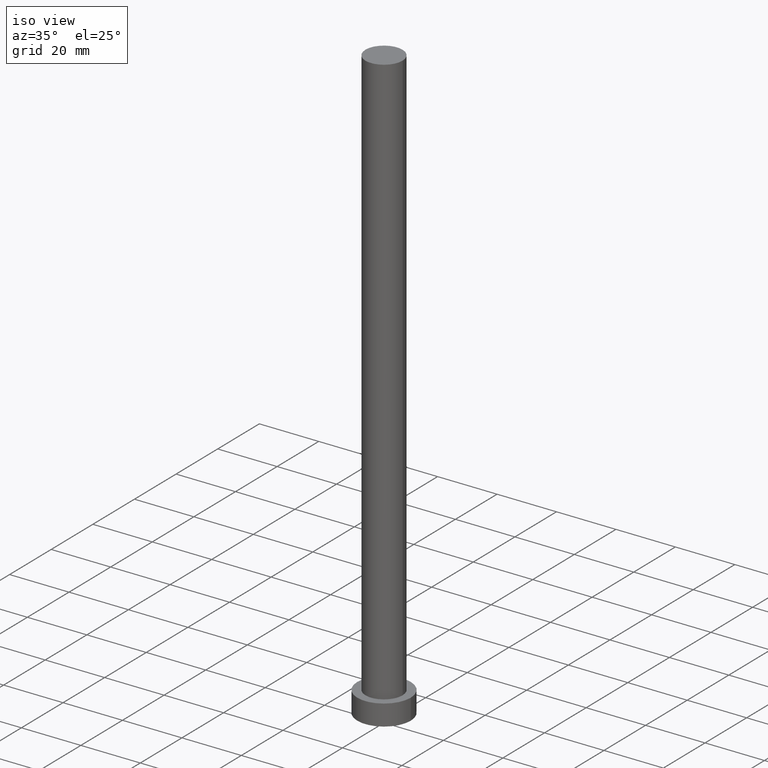
[diagram: clean part render]
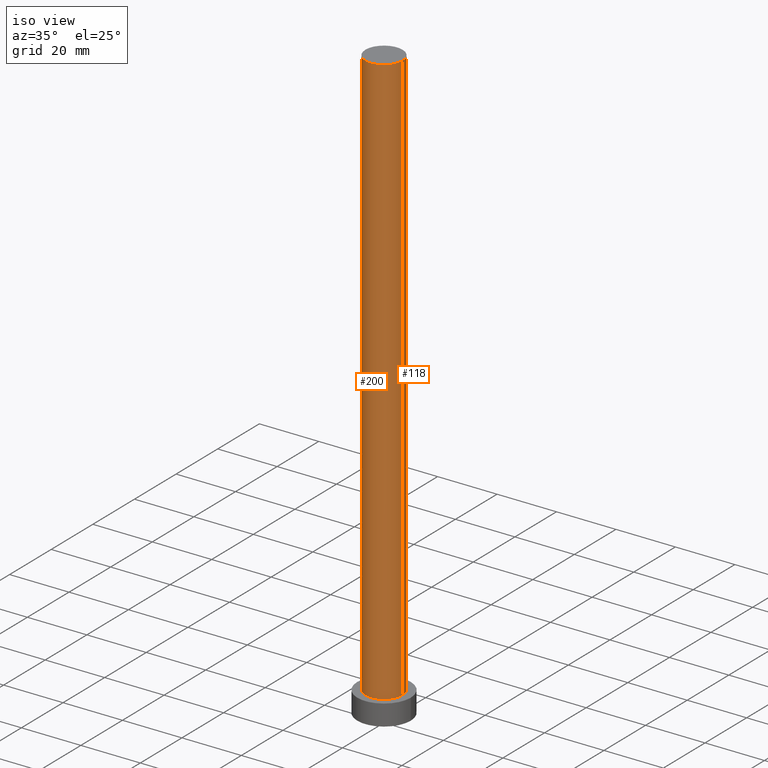
[diagram: same view with one multi-face feature highlighted, each face labeled with its STEP entity id]
A machine part, iso view. The highlighted faces form ONE feature: a constant-radius fillet chain: 2 tangent blend faces with common blend radius 6.25 mm. The faces share edges in the B-rep.
Their STEP definitions:
[1] entity #118 (Cylinder):
#1 = DIRECTION ( 'NONE',  ( -1.000000000000000000, 0.000000000000000000, 0.000000000000000000 ) ) ;
#2 = AXIS2_PLACEMENT_3D ( 'NONE', #86, #212, #1 ) ;
#10 = CIRCLE ( 'NONE', #42, 6.250000000000000000 ) ;
#11 = ORIENTED_EDGE ( 'NONE', *, *, #158, .T. ) ;
#21 = AXIS2_PLACEMENT_3D ( 'NONE', #32, #72, #155 ) ;
#23 = CARTESIAN_POINT ( 'NONE',  ( 6.250000000000000000, 7.654042494670957606E-16, 200.0000000000000000 ) ) ;
#28 = VERTEX_POINT ( 'NONE', #123 ) ;
#29 = VERTEX_POINT ( 'NONE', #205 ) ;
#32 = CARTESIAN_POINT ( 'NONE',  ( 0.000000000000000000, 0.000000000000000000, 7.000000000000000000 ) ) ;
#36 = FACE_OUTER_BOUND ( 'NONE', #206, .T. ) ;
#42 = AXIS2_PLACEMENT_3D ( 'NONE', #85, #71, #188 ) ;
#43 = ORIENTED_EDGE ( 'NONE', *, *, #241, .F. ) ;
#49 = CARTESIAN_POINT ( 'NONE',  ( -6.250000000000000000, 0.000000000000000000, 200.0000000000000000 ) ) ;
#71 = DIRECTION ( 'NONE',  ( 0.000000000000000000, 0.000000000000000000, 1.000000000000000000 ) ) ;
#72 = DIRECTION ( 'NONE',  ( 0.000000000000000000, 0.000000000000000000, 1.000000000000000000 ) ) ;
#74 = DIRECTION ( 'NONE',  ( -0.000000000000000000, -0.000000000000000000, -1.000000000000000000 ) ) ;
#83 = ORIENTED_EDGE ( 'NONE', *, *, #177, .F. ) ;
#85 = CARTESIAN_POINT ( 'NONE',  ( 0.000000000000000000, 0.000000000000000000, 200.0000000000000000 ) ) ;
#86 = CARTESIAN_POINT ( 'NONE',  ( 0.000000000000000000, 0.000000000000000000, 200.0000000000000000 ) ) ;
#118 = ADVANCED_FACE ( 'NONE', ( #36 ), #152, .T. ) ;
#123 = CARTESIAN_POINT ( 'NONE',  ( 6.250000000000000000, 7.654042494670957606E-16, 7.000000000000000000 ) ) ;
#135 = CARTESIAN_POINT ( 'NONE',  ( -6.250000000000000000, 0.000000000000000000, 200.0000000000000000 ) ) ;
#147 = ORIENTED_EDGE ( 'NONE', *, *, #255, .T. ) ;
#152 = CYLINDRICAL_SURFACE ( 'NONE', #2, 6.250000000000000000 ) ;
#155 = DIRECTION ( 'NONE',  ( 1.000000000000000000, 0.000000000000000000, 0.000000000000000000 ) ) ;
#157 = CARTESIAN_POINT ( 'NONE',  ( -6.250000000000000000, 0.000000000000000000, 7.000000000000000000 ) ) ;
#158 = EDGE_CURVE ( 'NONE', #28, #226, #222, .T. ) ;
#175 = LINE ( 'NONE', #23, #223 ) ;
#177 = EDGE_CURVE ( 'NONE', #29, #204, #10, .T. ) ;
#178 = DIRECTION ( 'NONE',  ( -0.000000000000000000, -0.000000000000000000, -1.000000000000000000 ) ) ;
#185 = VECTOR ( 'NONE', #74, 1000.000000000000000 ) ;
#188 = DIRECTION ( 'NONE',  ( 1.000000000000000000, 0.000000000000000000, 0.000000000000000000 ) ) ;
#204 = VERTEX_POINT ( 'NONE', #49 ) ;
#205 = CARTESIAN_POINT ( 'NONE',  ( 6.250000000000000000, 7.654042494670957606E-16, 200.0000000000000000 ) ) ;
#206 = EDGE_LOOP ( 'NONE', ( #83, #147, #11, #43 ) ) ;
#212 = DIRECTION ( 'NONE',  ( -0.000000000000000000, -0.000000000000000000, -1.000000000000000000 ) ) ;
#220 = LINE ( 'NONE', #135, #185 ) ;
#222 = CIRCLE ( 'NONE', #21, 6.250000000000000000 ) ;
#223 = VECTOR ( 'NONE', #178, 1000.000000000000000 ) ;
#226 = VERTEX_POINT ( 'NONE', #157 ) ;
#241 = EDGE_CURVE ( 'NONE', #204, #226, #220, .T. ) ;
#255 = EDGE_CURVE ( 'NONE', #29, #28, #175, .T. ) ;
[2] entity #200 (Cylinder):
#14 = DIRECTION ( 'NONE',  ( -0.000000000000000000, -0.000000000000000000, -1.000000000000000000 ) ) ;
#23 = CARTESIAN_POINT ( 'NONE',  ( 6.250000000000000000, 7.654042494670957606E-16, 200.0000000000000000 ) ) ;
#28 = VERTEX_POINT ( 'NONE', #123 ) ;
#29 = VERTEX_POINT ( 'NONE', #205 ) ;
#34 = CARTESIAN_POINT ( 'NONE',  ( 0.000000000000000000, 0.000000000000000000, 200.0000000000000000 ) ) ;
#44 = ORIENTED_EDGE ( 'NONE', *, *, #145, .T. ) ;
#49 = CARTESIAN_POINT ( 'NONE',  ( -6.250000000000000000, 0.000000000000000000, 200.0000000000000000 ) ) ;
#57 = AXIS2_PLACEMENT_3D ( 'NONE', #128, #112, #231 ) ;
#63 = EDGE_CURVE ( 'NONE', #204, #29, #93, .T. ) ;
#65 = EDGE_LOOP ( 'NONE', ( #247, #143, #164, #44 ) ) ;
#66 = CIRCLE ( 'NONE', #214, 6.250000000000000000 ) ;
#74 = DIRECTION ( 'NONE',  ( -0.000000000000000000, -0.000000000000000000, -1.000000000000000000 ) ) ;
#88 = DIRECTION ( 'NONE',  ( 1.000000000000000000, 0.000000000000000000, 0.000000000000000000 ) ) ;
#93 = CIRCLE ( 'NONE', #57, 6.250000000000000000 ) ;
#110 = DIRECTION ( 'NONE',  ( -1.000000000000000000, 0.000000000000000000, 0.000000000000000000 ) ) ;
#112 = DIRECTION ( 'NONE',  ( 0.000000000000000000, 0.000000000000000000, 1.000000000000000000 ) ) ;
#123 = CARTESIAN_POINT ( 'NONE',  ( 6.250000000000000000, 7.654042494670957606E-16, 7.000000000000000000 ) ) ;
#126 = CARTESIAN_POINT ( 'NONE',  ( 0.000000000000000000, 0.000000000000000000, 7.000000000000000000 ) ) ;
#128 = CARTESIAN_POINT ( 'NONE',  ( 0.000000000000000000, 0.000000000000000000, 200.0000000000000000 ) ) ;
#135 = CARTESIAN_POINT ( 'NONE',  ( -6.250000000000000000, 0.000000000000000000, 200.0000000000000000 ) ) ;
#143 = ORIENTED_EDGE ( 'NONE', *, *, #63, .F. ) ;
#145 = EDGE_CURVE ( 'NONE', #226, #28, #66, .T. ) ;
#153 = FACE_OUTER_BOUND ( 'NONE', #65, .T. ) ;
#157 = CARTESIAN_POINT ( 'NONE',  ( -6.250000000000000000, 0.000000000000000000, 7.000000000000000000 ) ) ;
#164 = ORIENTED_EDGE ( 'NONE', *, *, #241, .T. ) ;
#167 = CYLINDRICAL_SURFACE ( 'NONE', #193, 6.250000000000000000 ) ;
#175 = LINE ( 'NONE', #23, #223 ) ;
#178 = DIRECTION ( 'NONE',  ( -0.000000000000000000, -0.000000000000000000, -1.000000000000000000 ) ) ;
#185 = VECTOR ( 'NONE', #74, 1000.000000000000000 ) ;
#193 = AXIS2_PLACEMENT_3D ( 'NONE', #34, #14, #110 ) ;
#200 = ADVANCED_FACE ( 'NONE', ( #153 ), #167, .T. ) ;
#204 = VERTEX_POINT ( 'NONE', #49 ) ;
#205 = CARTESIAN_POINT ( 'NONE',  ( 6.250000000000000000, 7.654042494670957606E-16, 200.0000000000000000 ) ) ;
#214 = AXIS2_PLACEMENT_3D ( 'NONE', #126, #254, #88 ) ;
#220 = LINE ( 'NONE', #135, #185 ) ;
#223 = VECTOR ( 'NONE', #178, 1000.000000000000000 ) ;
#226 = VERTEX_POINT ( 'NONE', #157 ) ;
#231 = DIRECTION ( 'NONE',  ( 1.000000000000000000, 0.000000000000000000, 0.000000000000000000 ) ) ;
#241 = EDGE_CURVE ( 'NONE', #204, #226, #220, .T. ) ;
#247 = ORIENTED_EDGE ( 'NONE', *, *, #255, .F. ) ;
#254 = DIRECTION ( 'NONE',  ( 0.000000000000000000, 0.000000000000000000, 1.000000000000000000 ) ) ;
#255 = EDGE_CURVE ( 'NONE', #29, #28, #175, .T. ) ;